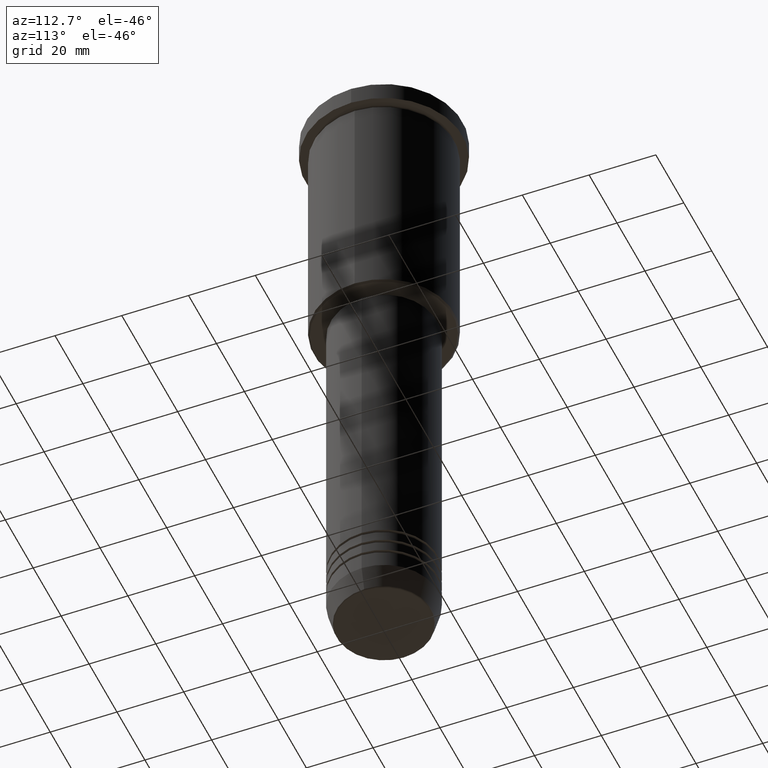
[diagram: clean part render]
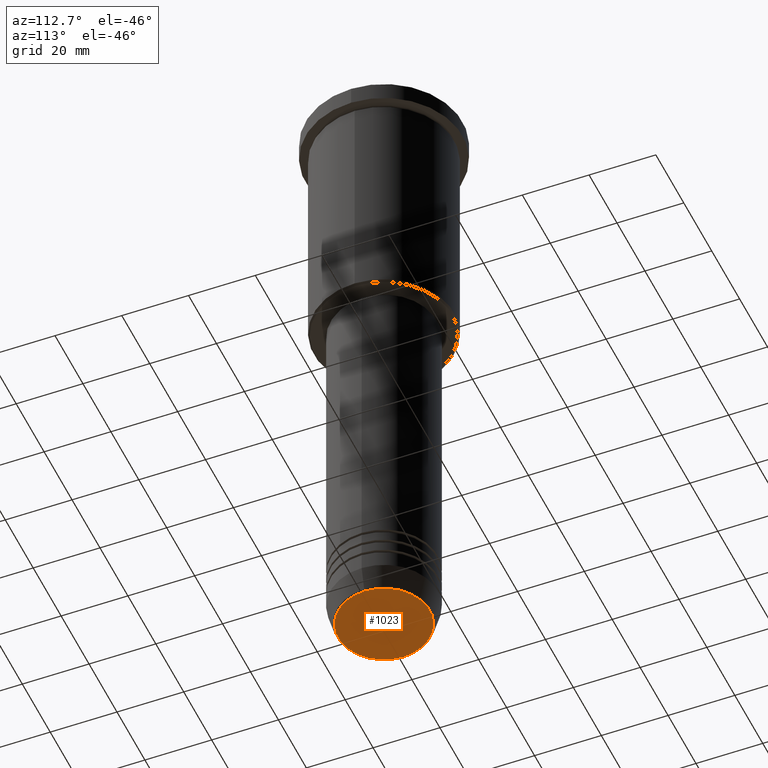
[diagram: same view with one face highlighted and labeled with its STEP entity id]
A machine part, auxiliary view. The second image highlights one B-rep face of the part: STEP entity #1023.
In plain terms, the highlighted planar face has unit normal (0, -0, 1).
Its self-contained STEP definition (entity closure, byte-faithful):
#11 = AXIS2_PLACEMENT_3D ( 'NONE', #697, #1178, #431 ) ;
#16 = VERTEX_POINT ( 'NONE', #1171 ) ;
#96 = DIRECTION ( 'NONE',  ( 0.000000000000000000, 0.000000000000000000, -1.000000000000000000 ) ) ;
#133 = CARTESIAN_POINT ( 'NONE',  ( 0.000000000000000000, 0.000000000000000000, -191.0000000000000000 ) ) ;
#223 = AXIS2_PLACEMENT_3D ( 'NONE', #379, #96, #457 ) ;
#269 = PLANE ( 'NONE',  #11 ) ;
#289 = VERTEX_POINT ( 'NONE', #987 ) ;
#367 = EDGE_LOOP ( 'NONE', ( #674, #528 ) ) ;
#379 = CARTESIAN_POINT ( 'NONE',  ( 0.000000000000000000, 0.000000000000000000, -191.0000000000000000 ) ) ;
#382 = EDGE_CURVE ( 'NONE', #289, #16, #782, .T. ) ;
#431 = DIRECTION ( 'NONE',  ( 1.000000000000000000, 0.000000000000000000, 0.000000000000000000 ) ) ;
#457 = DIRECTION ( 'NONE',  ( 1.000000000000000000, 0.000000000000000000, 0.000000000000000000 ) ) ;
#528 = ORIENTED_EDGE ( 'NONE', *, *, #707, .T. ) ;
#674 = ORIENTED_EDGE ( 'NONE', *, *, #382, .T. ) ;
#689 = CIRCLE ( 'NONE', #223, 13.74069215899265828 ) ;
#697 = CARTESIAN_POINT ( 'NONE',  ( 0.000000000000000000, 0.000000000000000000, -191.0000000000000000 ) ) ;
#707 = EDGE_CURVE ( 'NONE', #16, #289, #689, .T. ) ;
#782 = CIRCLE ( 'NONE', #1128, 13.74069215899265828 ) ;
#816 = FACE_OUTER_BOUND ( 'NONE', #367, .T. ) ;
#861 = DIRECTION ( 'NONE',  ( 1.000000000000000000, 0.000000000000000000, 0.000000000000000000 ) ) ;
#987 = CARTESIAN_POINT ( 'NONE',  ( 13.74069215899265828, 0.000000000000000000, -191.0000000000000000 ) ) ;
#1023 = ADVANCED_FACE ( 'NONE', ( #816 ), #269, .F. ) ;
#1029 = DIRECTION ( 'NONE',  ( 0.000000000000000000, 0.000000000000000000, -1.000000000000000000 ) ) ;
#1128 = AXIS2_PLACEMENT_3D ( 'NONE', #133, #1029, #861 ) ;
#1171 = CARTESIAN_POINT ( 'NONE',  ( -13.74069215899265828, 1.712322416342415986E-15, -191.0000000000000000 ) ) ;
#1178 = DIRECTION ( 'NONE',  ( 0.000000000000000000, -0.000000000000000000, 1.000000000000000000 ) ) ;